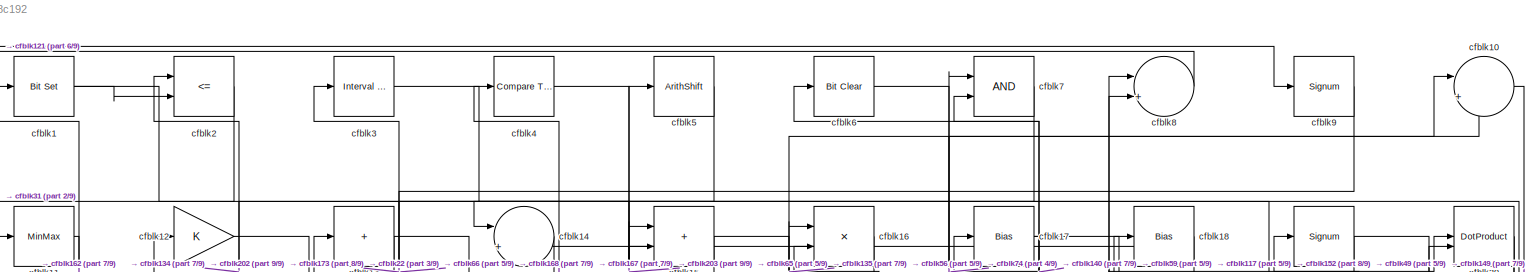
[diagram: root canvas - part 1/9, full width, top band]
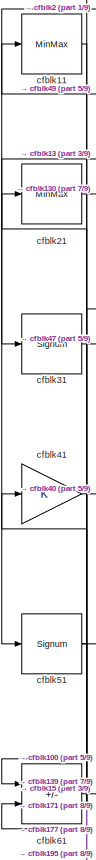
[diagram: root canvas - part 2/9, top left region]
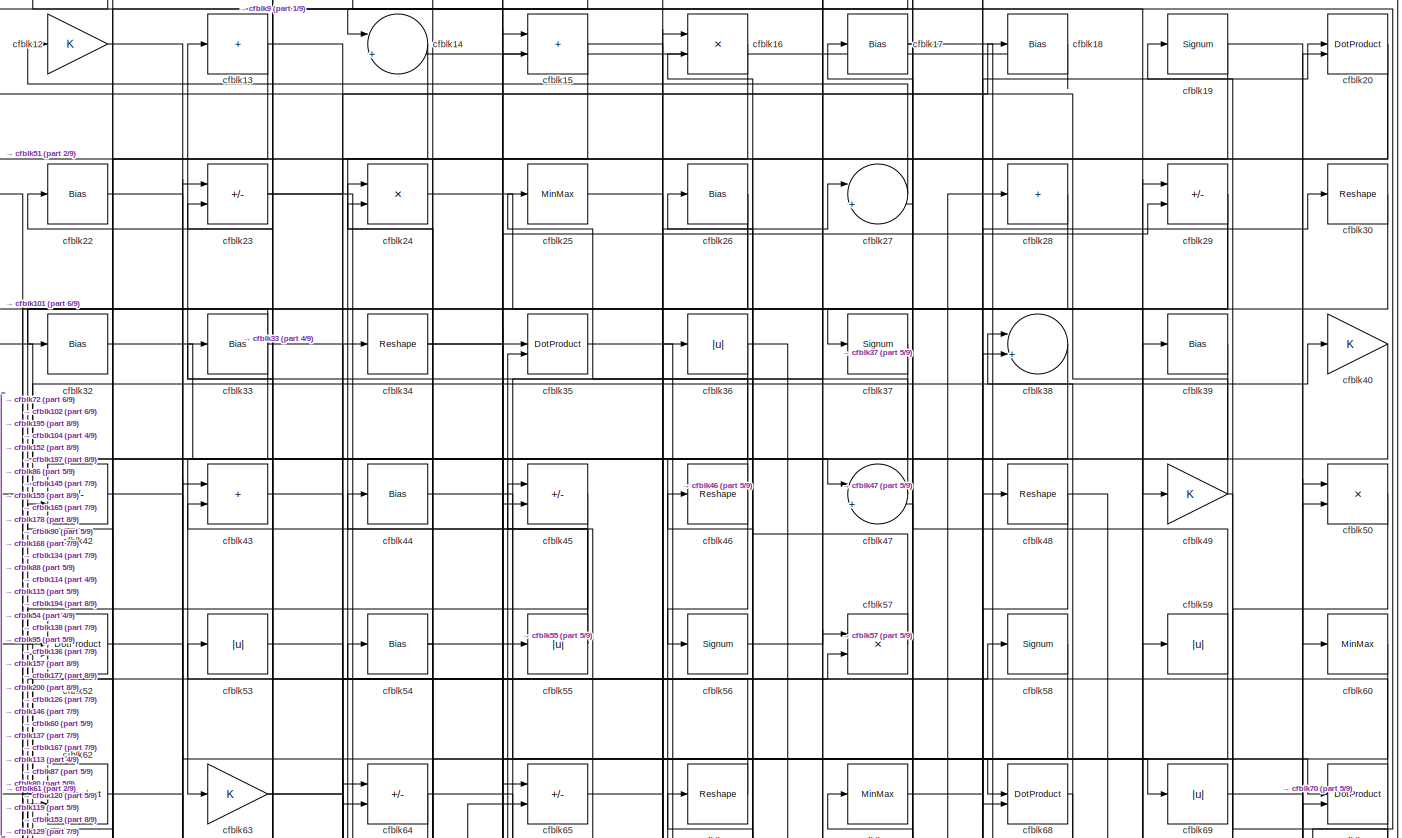
[diagram: root canvas - part 3/9, full width, top band]
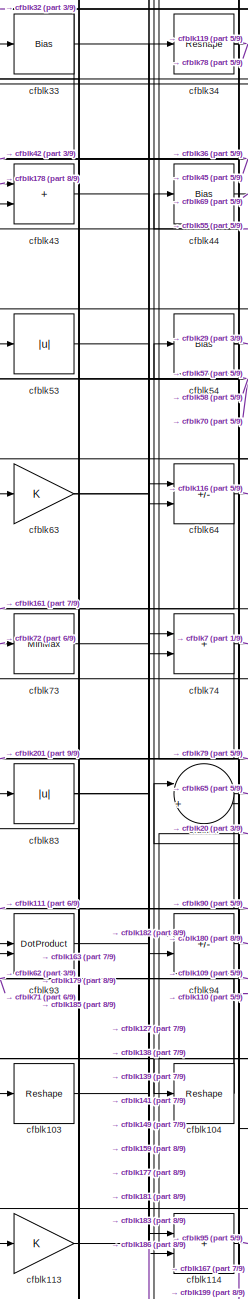
[diagram: root canvas - part 4/9, middle left region]
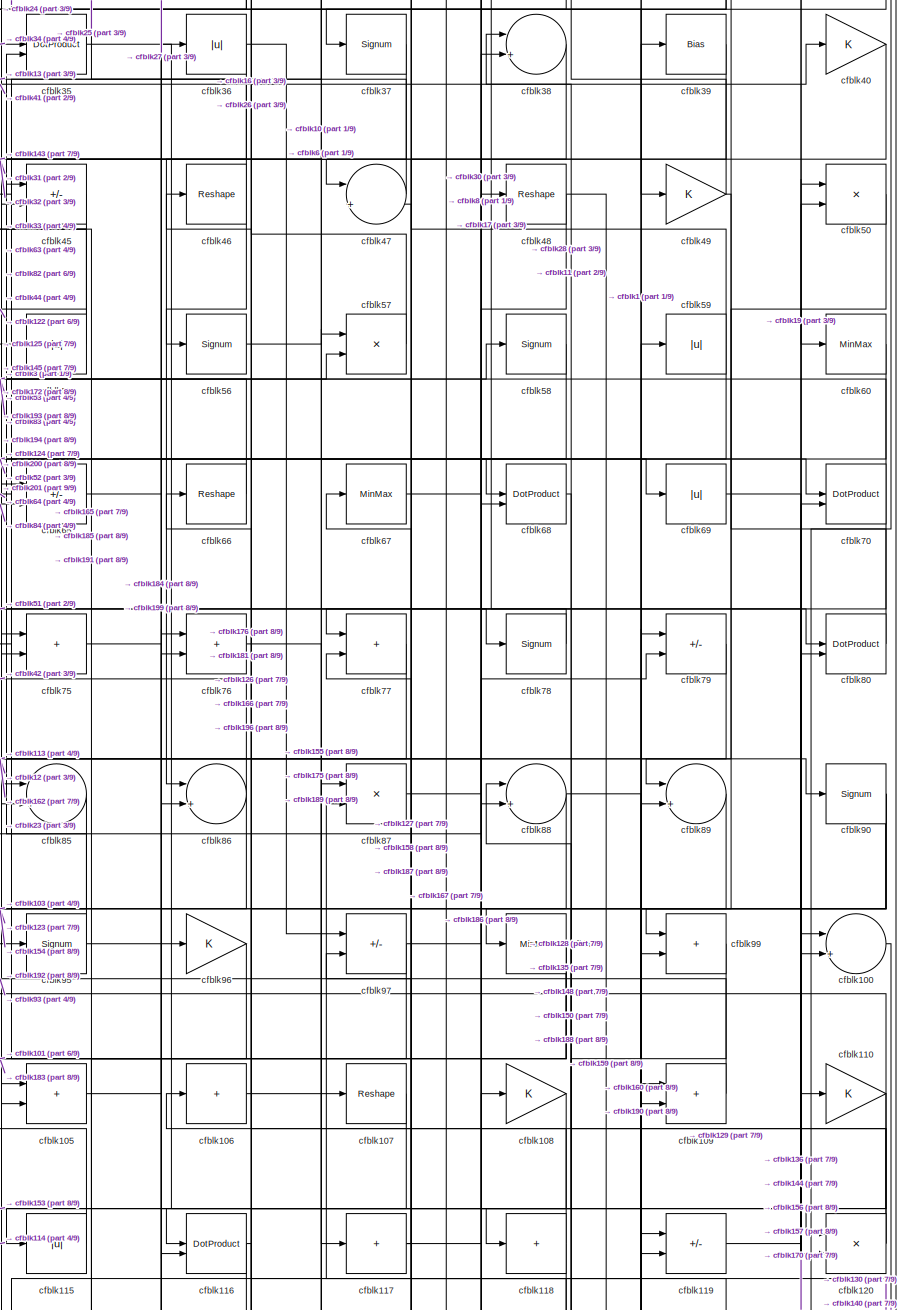
[diagram: root canvas - part 5/9, middle right region]
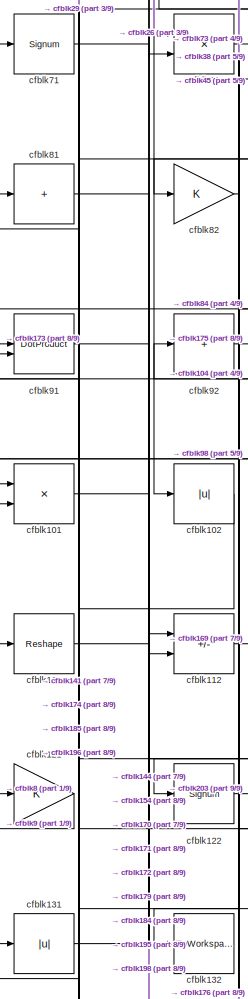
[diagram: root canvas - part 6/9, middle left region]
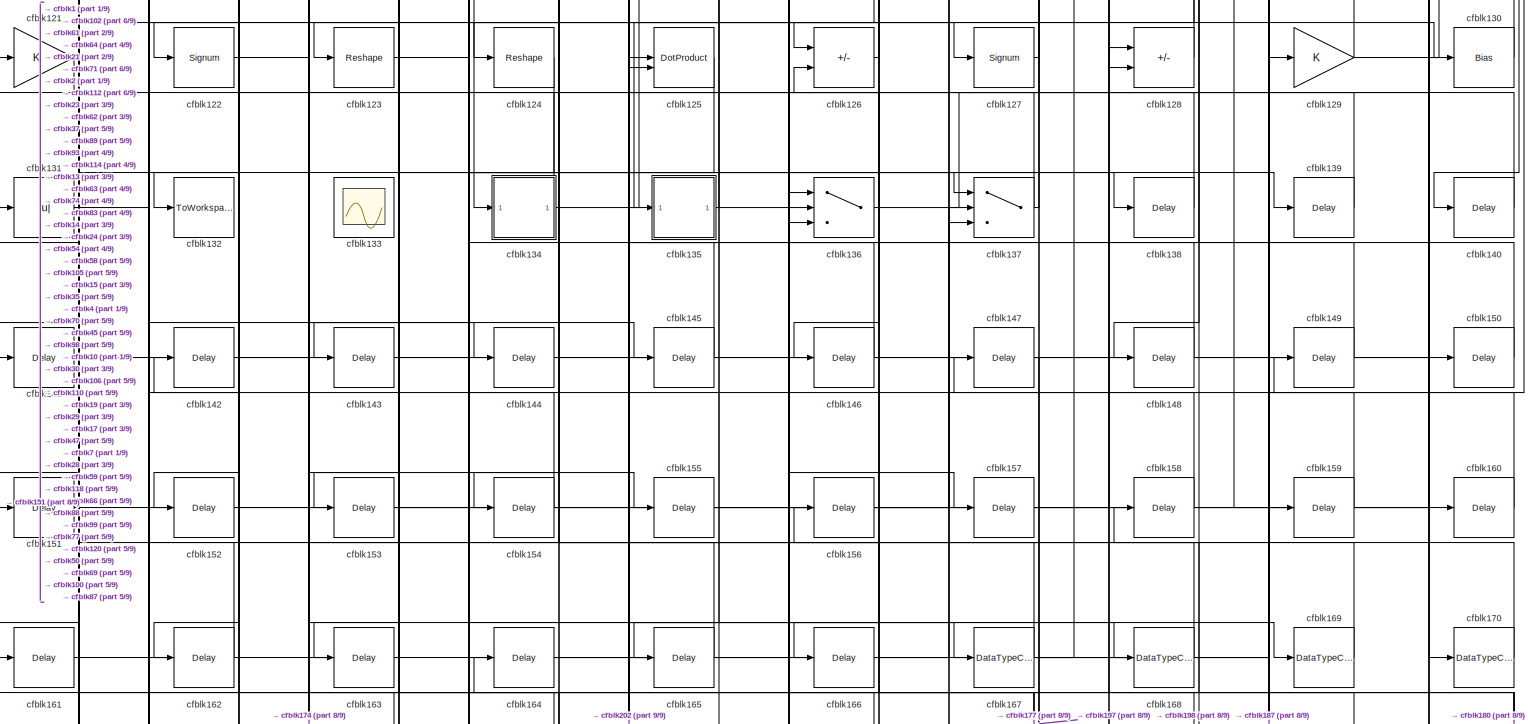
[diagram: root canvas - part 7/9, full width, bottom band]
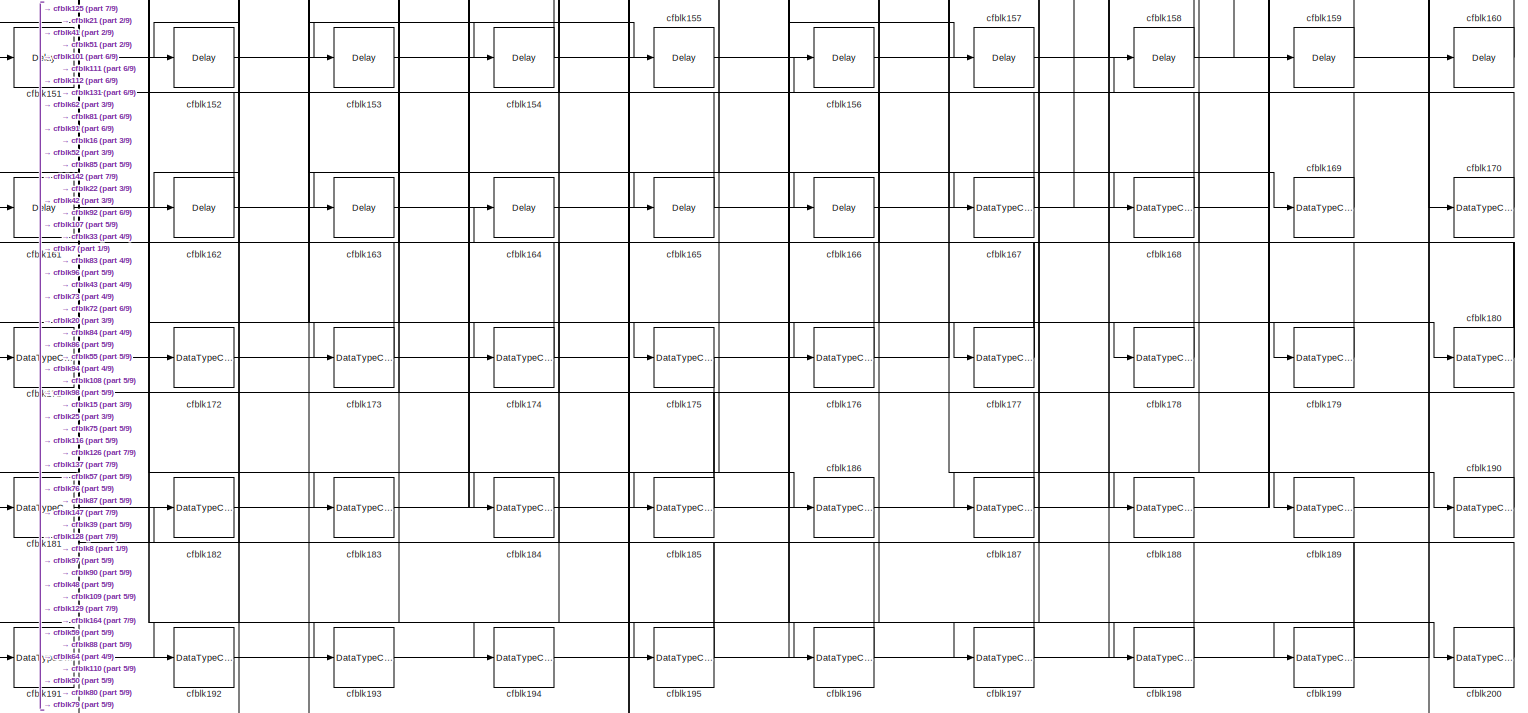
[diagram: root canvas - part 8/9, full width, bottom band]
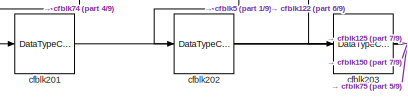
[diagram: root canvas - part 9/9, bottom left region]
MODEL slx_3566a298c192
KIND model
CONFIG AbsTol = auto
CONFIG EnableMultiTasking = off
CONFIG FixedStep = auto
CONFIG MaxStep = auto
CONFIG MinStep = auto
CONFIG RelTol = 1e-3
CONFIG SampleTimeConstraint = Unconstrained
CONFIG SolverName = VariableStepAuto
CONFIG StartTime = 0.0
CONFIG StopTime = 10.0
BLOCK [Reference] cfblk1  REF=simulink/Logic and Bit
Operations/Bit Set
  LibrarySourceBlock = hdlsllib/Logic and Bit\nOperations/Bit Set
  SourceBlock = simulink/Logic and Bit\nOperations/Bit Set
  SourceType = Bit Set
BLOCK [Sum] cfblk10
  Inputs = |++
BLOCK [Sum] cfblk100
  Inputs = |++
BLOCK [Product] cfblk101
  Inputs = */
  RndMeth = Zero
  SaturateOnIntegerOverflow = on
BLOCK [Abs] cfblk102
  SaturateOnIntegerOverflow = off
BLOCK [Reshape] cfblk103
BLOCK [Reshape] cfblk104
BLOCK [Sum] cfblk105
  IconShape = rectangular
BLOCK [Sum] cfblk106
  IconShape = rectangular
  Inputs = +
BLOCK [Reshape] cfblk107
BLOCK [Gain] cfblk108
BLOCK [Sum] cfblk109
  IconShape = rectangular
BLOCK [MinMax] cfblk11
BLOCK [Gain] cfblk110
BLOCK [Reshape] cfblk111
BLOCK [Sum] cfblk112
  IconShape = rectangular
  Inputs = +-
BLOCK [Gain] cfblk113
BLOCK [Sum] cfblk114
  IconShape = rectangular
BLOCK [Abs] cfblk115
  SaturateOnIntegerOverflow = off
BLOCK [DotProduct] cfblk116
  OutDataTypeStr = Inherit: Inherit via internal rule
BLOCK [Sum] cfblk117
  IconShape = rectangular
  Inputs = +
BLOCK [Sum] cfblk118
  IconShape = rectangular
  Inputs = +
BLOCK [Sum] cfblk119
  IconShape = rectangular
  Inputs = +-
BLOCK [Gain] cfblk12
BLOCK [Product] cfblk120
  Inputs = */
  RndMeth = Zero
  SaturateOnIntegerOverflow = on
BLOCK [Gain] cfblk121
BLOCK [Signum] cfblk122
BLOCK [Reshape] cfblk123
BLOCK [Reshape] cfblk124
BLOCK [DotProduct] cfblk125
  OutDataTypeStr = Inherit: Inherit via internal rule
BLOCK [Sum] cfblk126
  IconShape = rectangular
  Inputs = +-
BLOCK [Signum] cfblk127
BLOCK [Sum] cfblk128
  IconShape = rectangular
  Inputs = +-
BLOCK [Gain] cfblk129
BLOCK [Sum] cfblk13
  IconShape = rectangular
  Inputs = +
BLOCK [Bias] cfblk130
  Bias = 0.0
  SaturateOnIntegerOverflow = off
BLOCK [Abs] cfblk131
  SaturateOnIntegerOverflow = off
BLOCK [ToWorkspace] cfblk132
  MaxDataPoints = inf
  SampleTime = -1
  SaveFormat = Timeseries
  VariableName = simout
BLOCK [Scope] cfblk133
  Floating = on
  NumInputPorts = 1
  ScopeSpecificationString = Simulink.scopes.TimeScopeBlockCfg('CurrentConfiguration', extmgr.ConfigurationSet(extmgr.Configuration('Core','General UI',true,'FigureColor',[0.156862745098039 0.156862745098039 0.156862745098039]),extmgr.Configuration('Core','Source UI',true),extmgr.Configuration('Sources','WiredSimulink',true,'DataLoggingVariableName','ScopeData1','DataLoggingSaveFormat','StructureWithTime','DataLoggingLimitDat...<+2713ch>
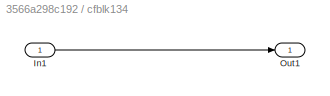
BLOCK [SubSystem] cfblk134
  LibrarySourceBlock = hdlsllib/Ports &\nSubsystems/Subsystem
BLOCK [Inport] cfblk134/In1
BLOCK [Outport] cfblk134/Out1
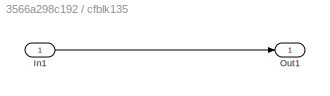
BLOCK [SubSystem] cfblk135
  LibrarySourceBlock = hdlsllib/Ports &\nSubsystems/Subsystem
BLOCK [Inport] cfblk135/In1
BLOCK [Outport] cfblk135/Out1
BLOCK [Switch] cfblk136
  InputSameDT = off
  SaturateOnIntegerOverflow = off
BLOCK [Switch] cfblk137
  InputSameDT = off
  SaturateOnIntegerOverflow = off
BLOCK [Delay] cfblk138
  InputPortMap = u0
  SampleTime = 1
BLOCK [Delay] cfblk139
  InputPortMap = u0
  SampleTime = 1
BLOCK [Sum] cfblk14
  Inputs = |++
BLOCK [Delay] cfblk140
  InputPortMap = u0
  SampleTime = 1
BLOCK [Delay] cfblk141
  InputPortMap = u0
  SampleTime = 1
BLOCK [Delay] cfblk142
  InputPortMap = u0
  SampleTime = 1
BLOCK [Delay] cfblk143
  InputPortMap = u0
  SampleTime = 1
BLOCK [Delay] cfblk144
  InputPortMap = u0
  SampleTime = 1
BLOCK [Delay] cfblk145
  InputPortMap = u0
  SampleTime = 1
BLOCK [Delay] cfblk146
  InputPortMap = u0
  SampleTime = 1
BLOCK [Delay] cfblk147
  InputPortMap = u0
  SampleTime = 1
BLOCK [Delay] cfblk148
  InputPortMap = u0
  SampleTime = 1
BLOCK [Delay] cfblk149
  InputPortMap = u0
  SampleTime = 1
BLOCK [Sum] cfblk15
  IconShape = rectangular
BLOCK [Delay] cfblk150
  InputPortMap = u0
  SampleTime = 1
BLOCK [Delay] cfblk151
  InputPortMap = u0
  SampleTime = 1
BLOCK [Delay] cfblk152
  InputPortMap = u0
  SampleTime = 1
BLOCK [Delay] cfblk153
  InputPortMap = u0
  SampleTime = 1
BLOCK [Delay] cfblk154
  InputPortMap = u0
  SampleTime = 1
BLOCK [Delay] cfblk155
  InputPortMap = u0
  SampleTime = 1
BLOCK [Delay] cfblk156
  InputPortMap = u0
  SampleTime = 1
BLOCK [Delay] cfblk157
  InputPortMap = u0
  SampleTime = 1
BLOCK [Delay] cfblk158
  InputPortMap = u0
  SampleTime = 1
BLOCK [Delay] cfblk159
  InputPortMap = u0
  SampleTime = 1
BLOCK [Product] cfblk16
  Inputs = */
  RndMeth = Zero
  SaturateOnIntegerOverflow = on
BLOCK [Delay] cfblk160
  InputPortMap = u0
  SampleTime = 1
BLOCK [Delay] cfblk161
  InputPortMap = u0
  SampleTime = 1
BLOCK [Delay] cfblk162
  InputPortMap = u0
  SampleTime = 1
BLOCK [Delay] cfblk163
  InputPortMap = u0
  SampleTime = 1
BLOCK [Delay] cfblk164
  InputPortMap = u0
  SampleTime = 1
BLOCK [Delay] cfblk165
  InputPortMap = u0
  SampleTime = 1
BLOCK [Delay] cfblk166
  InputPortMap = u0
  SampleTime = 1
BLOCK [DataTypeConversion] cfblk167
  RndMeth = Floor
  SaturateOnIntegerOverflow = off
BLOCK [DataTypeConversion] cfblk168
  OutDataTypeStr = uint8
  RndMeth = Floor
  SaturateOnIntegerOverflow = off
BLOCK [DataTypeConversion] cfblk169
  OutDataTypeStr = uint8
  RndMeth = Floor
  SaturateOnIntegerOverflow = off
BLOCK [Bias] cfblk17
  Bias = 0.0
  SaturateOnIntegerOverflow = off
BLOCK [DataTypeConversion] cfblk170
  OutDataTypeStr = uint8
  RndMeth = Floor
  SaturateOnIntegerOverflow = off
BLOCK [DataTypeConversion] cfblk171
  OutDataTypeStr = uint8
  RndMeth = Floor
  SaturateOnIntegerOverflow = off
BLOCK [DataTypeConversion] cfblk172
  OutDataTypeStr = uint8
  RndMeth = Floor
  SaturateOnIntegerOverflow = off
BLOCK [DataTypeConversion] cfblk173
  OutDataTypeStr = uint8
  RndMeth = Floor
  SaturateOnIntegerOverflow = off
BLOCK [DataTypeConversion] cfblk174
  OutDataTypeStr = uint8
  RndMeth = Floor
  SaturateOnIntegerOverflow = off
BLOCK [DataTypeConversion] cfblk175
  RndMeth = Floor
  SaturateOnIntegerOverflow = off
BLOCK [DataTypeConversion] cfblk176
  OutDataTypeStr = uint8
  RndMeth = Floor
  SaturateOnIntegerOverflow = off
BLOCK [DataTypeConversion] cfblk177
  RndMeth = Floor
  SaturateOnIntegerOverflow = off
BLOCK [DataTypeConversion] cfblk178
  OutDataTypeStr = uint8
  RndMeth = Floor
  SaturateOnIntegerOverflow = off
BLOCK [DataTypeConversion] cfblk179
  OutDataTypeStr = uint8
  RndMeth = Floor
  SaturateOnIntegerOverflow = off
BLOCK [Bias] cfblk18
  Bias = 0.0
  SaturateOnIntegerOverflow = off
BLOCK [DataTypeConversion] cfblk180
  RndMeth = Floor
  SaturateOnIntegerOverflow = off
BLOCK [DataTypeConversion] cfblk181
  OutDataTypeStr = uint8
  RndMeth = Floor
  SaturateOnIntegerOverflow = off
BLOCK [DataTypeConversion] cfblk182
  OutDataTypeStr = uint8
  RndMeth = Floor
  SaturateOnIntegerOverflow = off
BLOCK [DataTypeConversion] cfblk183
  RndMeth = Floor
  SaturateOnIntegerOverflow = off
BLOCK [DataTypeConversion] cfblk184
  OutDataTypeStr = uint8
  RndMeth = Floor
  SaturateOnIntegerOverflow = off
BLOCK [DataTypeConversion] cfblk185
  RndMeth = Floor
  SaturateOnIntegerOverflow = off
BLOCK [DataTypeConversion] cfblk186
  OutDataTypeStr = uint8
  RndMeth = Floor
  SaturateOnIntegerOverflow = off
BLOCK [DataTypeConversion] cfblk187
  RndMeth = Floor
  SaturateOnIntegerOverflow = off
BLOCK [DataTypeConversion] cfblk188
  OutDataTypeStr = uint8
  RndMeth = Floor
  SaturateOnIntegerOverflow = off
BLOCK [DataTypeConversion] cfblk189
  OutDataTypeStr = uint8
  RndMeth = Floor
  SaturateOnIntegerOverflow = off
BLOCK [Signum] cfblk19
BLOCK [DataTypeConversion] cfblk190
  OutDataTypeStr = uint8
  RndMeth = Floor
  SaturateOnIntegerOverflow = off
BLOCK [DataTypeConversion] cfblk191
  OutDataTypeStr = uint8
  RndMeth = Floor
  SaturateOnIntegerOverflow = off
BLOCK [DataTypeConversion] cfblk192
  RndMeth = Floor
  SaturateOnIntegerOverflow = off
BLOCK [DataTypeConversion] cfblk193
  OutDataTypeStr = uint8
  RndMeth = Floor
  SaturateOnIntegerOverflow = off
BLOCK [DataTypeConversion] cfblk194
  OutDataTypeStr = uint8
  RndMeth = Floor
  SaturateOnIntegerOverflow = off
BLOCK [DataTypeConversion] cfblk195
  RndMeth = Floor
  SaturateOnIntegerOverflow = off
BLOCK [DataTypeConversion] cfblk196
  OutDataTypeStr = uint8
  RndMeth = Floor
  SaturateOnIntegerOverflow = off
BLOCK [DataTypeConversion] cfblk197
  OutDataTypeStr = uint8
  RndMeth = Floor
  SaturateOnIntegerOverflow = off
BLOCK [DataTypeConversion] cfblk198
  OutDataTypeStr = uint8
  RndMeth = Floor
  SaturateOnIntegerOverflow = off
BLOCK [DataTypeConversion] cfblk199
  RndMeth = Floor
  SaturateOnIntegerOverflow = off
BLOCK [RelationalOperator] cfblk2
  InputSameDT = off
  Operator = <=
  OutDataTypeStr = boolean
BLOCK [DotProduct] cfblk20
  OutDataTypeStr = Inherit: Inherit via internal rule
BLOCK [DataTypeConversion] cfblk200
  OutDataTypeStr = uint8
  RndMeth = Floor
  SaturateOnIntegerOverflow = off
BLOCK [DataTypeConversion] cfblk201
  OutDataTypeStr = uint8
  RndMeth = Floor
  SaturateOnIntegerOverflow = off
BLOCK [DataTypeConversion] cfblk202
  RndMeth = Floor
  SaturateOnIntegerOverflow = off
BLOCK [DataTypeConversion] cfblk203
  OutDataTypeStr = uint8
  RndMeth = Floor
  SaturateOnIntegerOverflow = off
BLOCK [MinMax] cfblk21
BLOCK [Bias] cfblk22
  Bias = 0.0
  SaturateOnIntegerOverflow = off
BLOCK [Sum] cfblk23
  IconShape = rectangular
  Inputs = +-
BLOCK [Product] cfblk24
  Inputs = */
  RndMeth = Zero
  SaturateOnIntegerOverflow = on
BLOCK [MinMax] cfblk25
BLOCK [Bias] cfblk26
  Bias = 0.0
  SaturateOnIntegerOverflow = off
BLOCK [Sum] cfblk27
  Inputs = |++
BLOCK [Sum] cfblk28
  IconShape = rectangular
  Inputs = +
BLOCK [Sum] cfblk29
  IconShape = rectangular
  Inputs = +-
BLOCK [Reference] cfblk3  REF=hdlsllib/Logic and Bit
Operations/Interval Test
  SourceBlock = hdlsllib/Logic and Bit\nOperations/Interval Test
  SourceType = Interval Test
BLOCK [Reshape] cfblk30
BLOCK [Signum] cfblk31
BLOCK [Bias] cfblk32
  Bias = 0.0
  SaturateOnIntegerOverflow = off
BLOCK [Bias] cfblk33
  Bias = 0.0
  SaturateOnIntegerOverflow = off
BLOCK [Reshape] cfblk34
BLOCK [DotProduct] cfblk35
  OutDataTypeStr = Inherit: Inherit via internal rule
BLOCK [Abs] cfblk36
  SaturateOnIntegerOverflow = off
BLOCK [Signum] cfblk37
BLOCK [Sum] cfblk38
  Inputs = |++
BLOCK [Bias] cfblk39
  Bias = 0.0
  SaturateOnIntegerOverflow = off
BLOCK [Reference] cfblk4  REF=hdlsllib/Logic and Bit
Operations/Compare
To Constant
  SourceBlock = hdlsllib/Logic and Bit\nOperations/Compare\nTo Constant
  SourceType = Compare To Constant
BLOCK [Gain] cfblk40
BLOCK [Gain] cfblk41
BLOCK [Sum] cfblk42
  IconShape = rectangular
  Inputs = +-
BLOCK [Sum] cfblk43
  IconShape = rectangular
BLOCK [Bias] cfblk44
  Bias = 0.0
  SaturateOnIntegerOverflow = off
BLOCK [Sum] cfblk45
  IconShape = rectangular
  Inputs = +-
BLOCK [Reshape] cfblk46
BLOCK [Sum] cfblk47
  Inputs = |++
BLOCK [Reshape] cfblk48
BLOCK [Gain] cfblk49
BLOCK [ArithShift] cfblk5
  BitShiftNumber = 8
  InputPortMap = u0
BLOCK [Product] cfblk50
  Inputs = */
  RndMeth = Zero
  SaturateOnIntegerOverflow = on
BLOCK [Signum] cfblk51
BLOCK [DotProduct] cfblk52
  OutDataTypeStr = Inherit: Inherit via internal rule
BLOCK [Abs] cfblk53
  SaturateOnIntegerOverflow = off
BLOCK [Bias] cfblk54
  Bias = 0.0
  SaturateOnIntegerOverflow = off
BLOCK [Abs] cfblk55
  SaturateOnIntegerOverflow = off
BLOCK [Signum] cfblk56
BLOCK [Product] cfblk57
  Inputs = */
  RndMeth = Zero
  SaturateOnIntegerOverflow = on
BLOCK [Signum] cfblk58
BLOCK [Abs] cfblk59
  SaturateOnIntegerOverflow = off
BLOCK [Reference] cfblk6  REF=simulink/Logic and Bit
Operations/Bit Clear
  LibrarySourceBlock = hdlsllib/Logic and Bit\nOperations/Bit Clear
  SourceBlock = simulink/Logic and Bit\nOperations/Bit Clear
  SourceType = Bit Clear
BLOCK [MinMax] cfblk60
BLOCK [Sum] cfblk61
  IconShape = rectangular
  Inputs = +-
BLOCK [DotProduct] cfblk62
  OutDataTypeStr = Inherit: Inherit via internal rule
BLOCK [Gain] cfblk63
BLOCK [Sum] cfblk64
  IconShape = rectangular
  Inputs = +-
BLOCK [Sum] cfblk65
  IconShape = rectangular
  Inputs = +-
BLOCK [Reshape] cfblk66
BLOCK [MinMax] cfblk67
BLOCK [DotProduct] cfblk68
  OutDataTypeStr = Inherit: Inherit via internal rule
BLOCK [Abs] cfblk69
  SaturateOnIntegerOverflow = off
BLOCK [Logic] cfblk7
  AllPortsSameDT = off
  OutDataTypeStr = boolean
BLOCK [DotProduct] cfblk70
  OutDataTypeStr = Inherit: Inherit via internal rule
BLOCK [Signum] cfblk71
BLOCK [Product] cfblk72
  Inputs = */
  RndMeth = Zero
  SaturateOnIntegerOverflow = on
BLOCK [MinMax] cfblk73
BLOCK [Sum] cfblk74
  IconShape = rectangular
BLOCK [Sum] cfblk75
  IconShape = rectangular
BLOCK [Sum] cfblk76
  IconShape = rectangular
BLOCK [Sum] cfblk77
  IconShape = rectangular
BLOCK [Signum] cfblk78
BLOCK [Sum] cfblk79
  IconShape = rectangular
  Inputs = +-
BLOCK [Sum] cfblk8
  Inputs = |++
BLOCK [DotProduct] cfblk80
  OutDataTypeStr = Inherit: Inherit via internal rule
BLOCK [Sum] cfblk81
  IconShape = rectangular
  Inputs = +
BLOCK [Gain] cfblk82
BLOCK [Abs] cfblk83
  SaturateOnIntegerOverflow = off
BLOCK [Sum] cfblk84
  Inputs = |++
BLOCK [Sum] cfblk85
  Inputs = |++
BLOCK [Sum] cfblk86
  Inputs = |++
BLOCK [Product] cfblk87
  Inputs = */
  RndMeth = Zero
  SaturateOnIntegerOverflow = on
BLOCK [Sum] cfblk88
  Inputs = |++
BLOCK [Sum] cfblk89
  Inputs = |++
BLOCK [Signum] cfblk9
BLOCK [Signum] cfblk90
BLOCK [DotProduct] cfblk91
  OutDataTypeStr = Inherit: Inherit via internal rule
BLOCK [Sum] cfblk92
  IconShape = rectangular
  Inputs = +
BLOCK [DotProduct] cfblk93
  OutDataTypeStr = Inherit: Inherit via internal rule
BLOCK [Sum] cfblk94
  IconShape = rectangular
  Inputs = +-
BLOCK [Signum] cfblk95
BLOCK [Gain] cfblk96
BLOCK [Sum] cfblk97
  IconShape = rectangular
  Inputs = +-
BLOCK [MinMax] cfblk98
BLOCK [Sum] cfblk99
  IconShape = rectangular
LINE cfblk100:1 -> cfblk140:1
LINE cfblk101:1 -> cfblk198:1
LINE cfblk102:1 -> cfblk141:1
LINE cfblk103:1 -> cfblk34:1
NET cfblk104:1 -> cfblk62:2, cfblk71:1
LINE cfblk105:1 -> cfblk36:1
LINE cfblk106:1 -> cfblk107:1
LINE cfblk107:1 -> cfblk153:1
LINE cfblk108:1 -> cfblk185:1
LINE cfblk109:1 -> cfblk93:1
LINE cfblk10:1 -> cfblk149:1
NET cfblk110:1 -> cfblk116:1, cfblk166:1, cfblk84:2
LINE cfblk111:1 -> cfblk179:1
LINE cfblk112:1 -> cfblk169:1
LINE cfblk113:1 -> cfblk20:1
LINE cfblk114:1 -> cfblk95:1
LINE cfblk115:1 -> cfblk24:1
NET cfblk116:1 -> cfblk176:1, cfblk181:1
NET cfblk117:1 -> cfblk67:1, cfblk8:1
NET cfblk118:1 -> cfblk135:1, cfblk46:1
LINE cfblk119:1 -> cfblk100:2
LINE cfblk11:1 -> cfblk61:1
NET cfblk120:1 -> cfblk26:1, cfblk38:1
LINE cfblk121:1 -> cfblk9:1
LINE cfblk122:1 -> cfblk203:1
LINE cfblk123:1 -> cfblk137:1
LINE cfblk124:1 -> cfblk163:1
LINE cfblk125:1 -> cfblk151:1
LINE cfblk126:1 -> cfblk106:1
LINE cfblk127:1 -> cfblk47:2
LINE cfblk128:1 -> cfblk66:1
NET cfblk129:1 -> cfblk14:1, cfblk77:2
LINE cfblk12:1 -> cfblk90:1
LINE cfblk130:1 -> cfblk87:2
LINE cfblk131:1 -> cfblk184:1
LINE cfblk134/In1:1 -> cfblk134/Out1:1
NET cfblk134:1 -> cfblk29:1, cfblk2:1
LINE cfblk135/In1:1 -> cfblk135/Out1:1
NET cfblk135:1 -> cfblk10:2, cfblk45:1
LINE cfblk136:1 -> cfblk50:1
NET cfblk137:1 -> cfblk17:1, cfblk24:2
LINE cfblk138:1 -> cfblk15:1
LINE cfblk139:1 -> cfblk61:2
NET cfblk13:1 -> cfblk168:1, cfblk51:1
LINE cfblk140:1 -> cfblk7:2
LINE cfblk141:1 -> cfblk114:1
LINE cfblk142:1 -> cfblk174:1
LINE cfblk143:1 -> cfblk70:2
LINE cfblk144:1 -> cfblk120:2
LINE cfblk145:1 -> cfblk105:1
LINE cfblk146:1 -> cfblk136:1
LINE cfblk147:1 -> cfblk197:1
LINE cfblk148:1 -> cfblk35:1
LINE cfblk149:1 -> cfblk74:1
LINE cfblk14:1 -> cfblk134:1
LINE cfblk150:1 -> cfblk88:1
LINE cfblk151:1 -> cfblk137:2
LINE cfblk152:1 -> cfblk8:2
LINE cfblk153:1 -> cfblk20:2
LINE cfblk154:1 -> cfblk72:1
LINE cfblk155:1 -> cfblk87:1
LINE cfblk156:1 -> cfblk50:2
LINE cfblk157:1 -> cfblk80:2
LINE cfblk158:1 -> cfblk97:2
LINE cfblk159:1 -> cfblk64:1
NET cfblk15:1 -> cfblk200:1, cfblk52:1
LINE cfblk160:1 -> cfblk79:1
LINE cfblk161:1 -> cfblk136:3
LINE cfblk162:1 -> cfblk1:1
LINE cfblk163:1 -> cfblk93:2
LINE cfblk164:1 -> cfblk137:3
LINE cfblk165:1 -> cfblk23:1
LINE cfblk166:1 -> cfblk89:2
NET cfblk167:1 -> cfblk28:1, cfblk54:1, cfblk99:2
LINE cfblk168:1 -> cfblk4:1
LINE cfblk169:1 -> cfblk142:1
LINE cfblk16:1 -> cfblk152:1
LINE cfblk170:1 -> cfblk112:1
LINE cfblk171:1 -> cfblk112:2
LINE cfblk172:1 -> cfblk55:1
LINE cfblk173:1 -> cfblk91:1
LINE cfblk174:1 -> cfblk91:2
NET cfblk175:1 -> cfblk193:1, cfblk57:1
LINE cfblk176:1 -> cfblk92:1
NET cfblk177:1 -> cfblk126:2, cfblk16:1, cfblk41:1
LINE cfblk178:1 -> cfblk43:1
LINE cfblk179:1 -> cfblk43:2
NET cfblk17:1 -> cfblk27:2, cfblk80:1
NET cfblk180:1 -> cfblk128:1, cfblk156:1, cfblk158:1, cfblk83:1
LINE cfblk181:1 -> cfblk94:1
LINE cfblk182:1 -> cfblk94:2
NET cfblk183:1 -> cfblk59:1, cfblk64:2
LINE cfblk184:1 -> cfblk96:1
NET cfblk185:1 -> cfblk131:1, cfblk33:1
LINE cfblk186:1 -> cfblk108:1
NET cfblk187:1 -> cfblk109:1, cfblk129:1, cfblk164:1
LINE cfblk188:1 -> cfblk39:1
LINE cfblk189:1 -> cfblk110:1
LINE cfblk18:1 -> cfblk14:2
LINE cfblk190:1 -> cfblk76:1
LINE cfblk191:1 -> cfblk76:2
NET cfblk192:1 -> cfblk160:1, cfblk48:1
LINE cfblk193:1 -> cfblk85:1
LINE cfblk194:1 -> cfblk85:2
NET cfblk195:1 -> cfblk21:1, cfblk62:1
LINE cfblk196:1 -> cfblk81:1
LINE cfblk197:1 -> cfblk52:2
LINE cfblk198:1 -> cfblk147:1
NET cfblk199:1 -> cfblk182:1, cfblk84:1
NET cfblk19:1 -> cfblk126:1, cfblk60:1
NET cfblk1:1 -> cfblk2:2, cfblk49:1
LINE cfblk200:1 -> cfblk75:1
LINE cfblk201:1 -> cfblk75:2
NET cfblk202:1 -> cfblk125:1, cfblk150:1
LINE cfblk203:1 -> cfblk5:1
NET cfblk20:1 -> cfblk114:2, cfblk194:1
LINE cfblk21:1 -> cfblk130:1
LINE cfblk22:1 -> cfblk178:1
NET cfblk23:1 -> cfblk18:1, cfblk88:2
LINE cfblk24:1 -> cfblk119:1
LINE cfblk25:1 -> cfblk157:1
NET cfblk26:1 -> cfblk102:1, cfblk72:2
LINE cfblk27:1 -> cfblk12:1
LINE cfblk28:1 -> cfblk37:1
NET cfblk29:1 -> cfblk101:1, cfblk146:1
LINE cfblk2:1 -> cfblk31:1
LINE cfblk30:1 -> cfblk136:2
LINE cfblk31:1 -> cfblk47:1
LINE cfblk32:1 -> cfblk86:2
NET cfblk33:1 -> cfblk32:1, cfblk42:1, cfblk45:2
NET cfblk34:1 -> cfblk119:2, cfblk78:1
LINE cfblk35:1 -> cfblk120:1
NET cfblk36:1 -> cfblk63:1, cfblk97:1
LINE cfblk37:1 -> cfblk143:1
LINE cfblk38:1 -> cfblk82:1
LINE cfblk39:1 -> cfblk187:1
LINE cfblk3:1 -> cfblk65:1
LINE cfblk40:1 -> cfblk86:1
LINE cfblk41:1 -> cfblk40:1
LINE cfblk42:1 -> cfblk155:1
LINE cfblk43:1 -> cfblk177:1
LINE cfblk44:1 -> cfblk69:1
LINE cfblk45:1 -> cfblk122:1
NET cfblk46:1 -> cfblk13:1, cfblk56:1
LINE cfblk47:1 -> cfblk25:1
NET cfblk48:1 -> cfblk159:1, cfblk68:2
NET cfblk49:1 -> cfblk11:1, cfblk99:1
LINE cfblk4:1 -> cfblk167:1
LINE cfblk50:1 -> cfblk89:1
NET cfblk51:1 -> cfblk100:1, cfblk171:1
LINE cfblk52:1 -> cfblk70:1
LINE cfblk53:1 -> cfblk74:2
NET cfblk54:1 -> cfblk104:1, cfblk29:2
NET cfblk55:1 -> cfblk23:2, cfblk44:1
LINE cfblk56:1 -> cfblk10:1
LINE cfblk57:1 -> cfblk16:2
LINE cfblk58:1 -> cfblk124:1
NET cfblk59:1 -> cfblk128:2, cfblk6:1
LINE cfblk5:1 -> cfblk202:1
LINE cfblk60:1 -> cfblk105:2
LINE cfblk61:1 -> cfblk15:2
LINE cfblk62:1 -> cfblk145:1
NET cfblk63:1 -> cfblk138:1, cfblk139:1
NET cfblk64:1 -> cfblk116:2, cfblk161:1
LINE cfblk65:1 -> cfblk68:1
LINE cfblk66:1 -> cfblk3:1
LINE cfblk67:1 -> cfblk38:2
LINE cfblk68:1 -> cfblk118:1
LINE cfblk69:1 -> cfblk170:1
LINE cfblk6:1 -> cfblk117:1
NET cfblk70:1 -> cfblk125:2, cfblk53:1
LINE cfblk71:1 -> cfblk144:1
LINE cfblk72:1 -> cfblk73:1
LINE cfblk73:1 -> cfblk186:1
NET cfblk74:1 -> cfblk201:1, cfblk7:1
LINE cfblk75:1 -> cfblk199:1
LINE cfblk76:1 -> cfblk189:1
LINE cfblk77:1 -> cfblk162:1
LINE cfblk78:1 -> cfblk77:1
LINE cfblk79:1 -> cfblk113:1
LINE cfblk7:1 -> cfblk173:1
LINE cfblk80:1 -> cfblk19:1
LINE cfblk81:1 -> cfblk195:1
LINE cfblk82:1 -> cfblk132:1
NET cfblk83:1 -> cfblk127:1, cfblk57:2
NET cfblk84:1 -> cfblk111:1, cfblk65:2
LINE cfblk85:1 -> cfblk192:1
NET cfblk86:1 -> cfblk154:1, cfblk42:2
LINE cfblk87:1 -> cfblk30:1
NET cfblk88:1 -> cfblk190:1, cfblk196:1
LINE cfblk89:1 -> cfblk123:1
LINE cfblk8:1 -> cfblk121:1
NET cfblk90:1 -> cfblk103:1, cfblk109:2, cfblk188:1, cfblk98:1
LINE cfblk91:1 -> cfblk172:1
LINE cfblk92:1 -> cfblk175:1
LINE cfblk93:1 -> cfblk58:1
LINE cfblk94:1 -> cfblk180:1
NET cfblk95:1 -> cfblk27:1, cfblk35:2
LINE cfblk96:1 -> cfblk183:1
NET cfblk97:1 -> cfblk115:1, cfblk79:2
NET cfblk98:1 -> cfblk101:2, cfblk165:1, cfblk191:1
LINE cfblk99:1 -> cfblk148:1
LINE cfblk9:1 -> cfblk22:1
note: NET lines group one-source signal fan-out (src -> all destinations, sorted); 1:1 wires keep LINE
